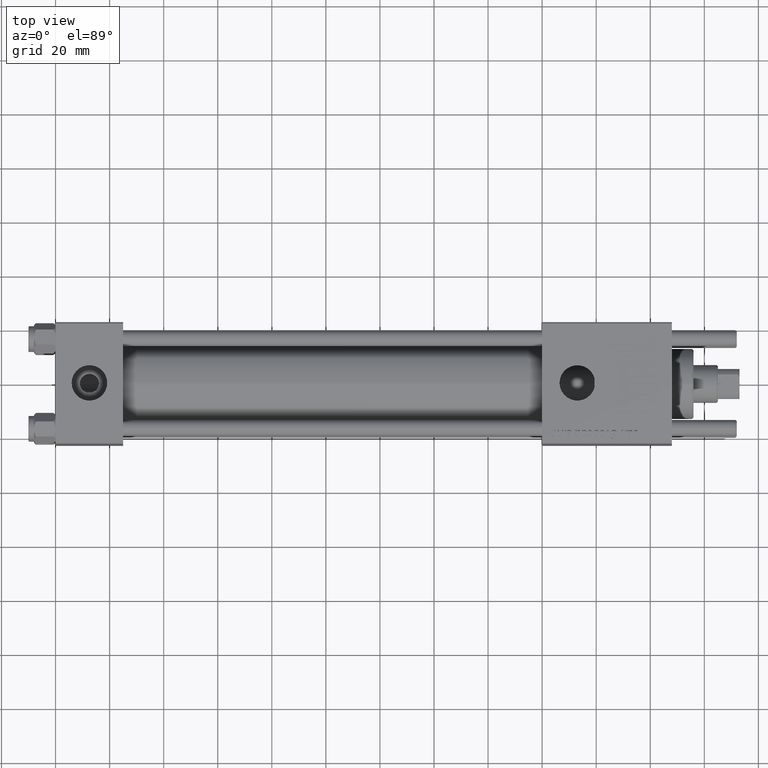
[diagram: clean part render]
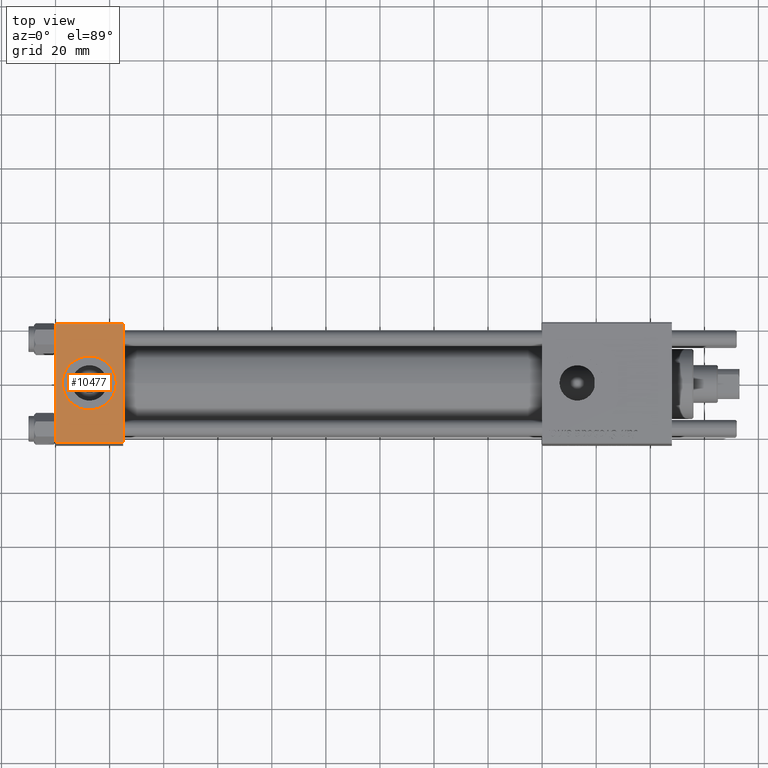
[diagram: same view with one face highlighted and labeled with its STEP entity id]
A machine part, top view. The second image highlights one B-rep face of the part: STEP entity #10477.
In plain terms, the highlighted planar face has unit normal (0, 0, -1).
Its self-contained STEP definition (entity closure, byte-faithful):
#748 = CARTESIAN_POINT ( 'NONE',  ( 25.00000000000000000, -21.99999999999999289, 22.50000000000000000 ) ) ;
#1429 = ORIENTED_EDGE ( 'NONE', *, *, #56265, .F. ) ;
#3189 = ORIENTED_EDGE ( 'NONE', *, *, #18915, .T. ) ;
#3639 = CARTESIAN_POINT ( 'NONE',  ( 12.50000000000000000, -1.734723475976807094E-15, 22.50000000000000000 ) ) ;
#3755 = DIRECTION ( 'NONE',  ( 0.000000000000000000, -1.000000000000000000, -7.709882115452476934E-17 ) ) ;
#3985 = VERTEX_POINT ( 'NONE', #38277 ) ;
#5548 = EDGE_CURVE ( 'NONE', #40956, #27011, #50487, .T. ) ;
#5672 = EDGE_LOOP ( 'NONE', ( #48559, #3189, #22988, #6580 ) ) ;
#6580 = ORIENTED_EDGE ( 'NONE', *, *, #7809, .T. ) ;
#7121 = DIRECTION ( 'NONE',  ( 0.000000000000000000, 7.709882115452476934E-17, -1.000000000000000000 ) ) ;
#7809 = EDGE_CURVE ( 'NONE', #3985, #25755, #51815, .T. ) ;
#8466 = DIRECTION ( 'NONE',  ( 0.000000000000000000, -1.000000000000000000, -7.709882115452476934E-17 ) ) ;
#8826 = LINE ( 'NONE', #748, #10177 ) ;
#10177 = VECTOR ( 'NONE', #36100, 1000.000000000000000 ) ;
#10477 = ADVANCED_FACE ( 'NONE', ( #37869, #55684 ), #16016, .F. ) ;
#10860 = CARTESIAN_POINT ( 'NONE',  ( 25.00000000000000000, 22.50000000000000000, 22.50000000000000355 ) ) ;
#11527 = VERTEX_POINT ( 'NONE', #39200 ) ;
#11923 = CARTESIAN_POINT ( 'NONE',  ( 12.50000000000000000, -1.734723475976807094E-15, 22.50000000000000000 ) ) ;
#12773 = CARTESIAN_POINT ( 'NONE',  ( 0.000000000000000000, 22.50000000000000000, 22.50000000000000355 ) ) ;
#13250 = CARTESIAN_POINT ( 'NONE',  ( 25.00000000000000000, 22.50000000000000000, 22.50000000000000355 ) ) ;
#16016 = PLANE ( 'NONE',  #47905 ) ;
#17638 = LINE ( 'NONE', #12773, #33067 ) ;
#17748 = CIRCLE ( 'NONE', #42523, 9.999999999999998224 ) ;
#17953 = EDGE_LOOP ( 'NONE', ( #1429, #49415 ) ) ;
#18915 = EDGE_CURVE ( 'NONE', #11527, #33650, #8826, .T. ) ;
#21338 = CARTESIAN_POINT ( 'NONE',  ( 0.000000000000000000, 21.99999999999999289, 22.50000000000000355 ) ) ;
#22988 = ORIENTED_EDGE ( 'NONE', *, *, #38566, .F. ) ;
#25755 = VERTEX_POINT ( 'NONE', #51198 ) ;
#27011 = VERTEX_POINT ( 'NONE', #30594 ) ;
#28965 = DIRECTION ( 'NONE',  ( 0.000000000000000000, 1.000000000000000000, 7.709882115452476934E-17 ) ) ;
#29232 = DIRECTION ( 'NONE',  ( 1.000000000000000000, 0.000000000000000000, 0.000000000000000000 ) ) ;
#29908 = VECTOR ( 'NONE', #3755, 1000.000000000000000 ) ;
#30594 = CARTESIAN_POINT ( 'NONE',  ( 22.50000000000000000, -1.734723475976807094E-15, 22.50000000000000000 ) ) ;
#33067 = VECTOR ( 'NONE', #8466, 1000.000000000000000 ) ;
#33650 = VERTEX_POINT ( 'NONE', #39401 ) ;
#36100 = DIRECTION ( 'NONE',  ( 1.000000000000000000, 0.000000000000000000, 0.000000000000000000 ) ) ;
#37869 = FACE_BOUND ( 'NONE', #17953, .T. ) ;
#38277 = CARTESIAN_POINT ( 'NONE',  ( 25.00000000000000000, 21.99999999999999289, 22.50000000000000355 ) ) ;
#38566 = EDGE_CURVE ( 'NONE', #3985, #33650, #42855, .T. ) ;
#39200 = CARTESIAN_POINT ( 'NONE',  ( 0.000000000000000000, -21.99999999999997868, 22.50000000000000000 ) ) ;
#39401 = CARTESIAN_POINT ( 'NONE',  ( 25.00000000000000000, -21.99999999999997868, 22.50000000000000000 ) ) ;
#40956 = VERTEX_POINT ( 'NONE', #49372 ) ;
#41832 = DIRECTION ( 'NONE',  ( 0.000000000000000000, 0.000000000000000000, 1.000000000000000000 ) ) ;
#42523 = AXIS2_PLACEMENT_3D ( 'NONE', #11923, #41832, #54476 ) ;
#42855 = LINE ( 'NONE', #13250, #29908 ) ;
#43277 = VECTOR ( 'NONE', #52950, 1000.000000000000000 ) ;
#43302 = DIRECTION ( 'NONE',  ( 0.000000000000000000, 0.000000000000000000, 1.000000000000000000 ) ) ;
#47905 = AXIS2_PLACEMENT_3D ( 'NONE', #10860, #7121, #28965 ) ;
#48559 = ORIENTED_EDGE ( 'NONE', *, *, #52597, .T. ) ;
#49372 = CARTESIAN_POINT ( 'NONE',  ( 2.500000000000003997, -5.100766768294543310E-16, 22.50000000000000000 ) ) ;
#49415 = ORIENTED_EDGE ( 'NONE', *, *, #5548, .F. ) ;
#50487 = CIRCLE ( 'NONE', #56028, 9.999999999999998224 ) ;
#51198 = CARTESIAN_POINT ( 'NONE',  ( 0.000000000000000000, 21.99999999999999289, 22.50000000000000355 ) ) ;
#51815 = LINE ( 'NONE', #21338, #43277 ) ;
#52597 = EDGE_CURVE ( 'NONE', #25755, #11527, #17638, .T. ) ;
#52950 = DIRECTION ( 'NONE',  ( -1.000000000000000000, 0.000000000000000000, 0.000000000000000000 ) ) ;
#54476 = DIRECTION ( 'NONE',  ( 1.000000000000000000, 0.000000000000000000, 0.000000000000000000 ) ) ;
#55684 = FACE_OUTER_BOUND ( 'NONE', #5672, .T. ) ;
#56028 = AXIS2_PLACEMENT_3D ( 'NONE', #3639, #43302, #29232 ) ;
#56265 = EDGE_CURVE ( 'NONE', #27011, #40956, #17748, .T. ) ;